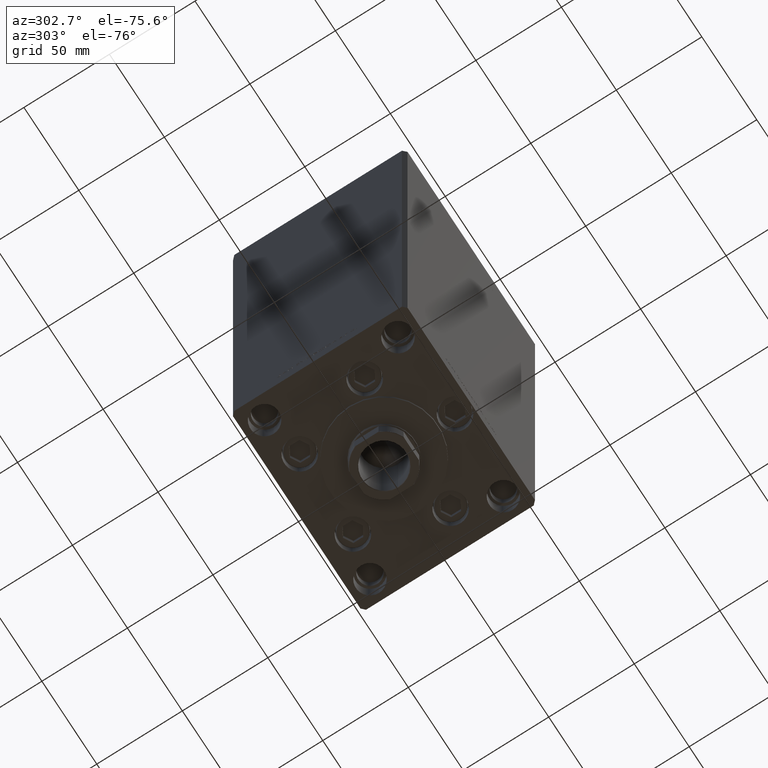
[diagram: clean part render]
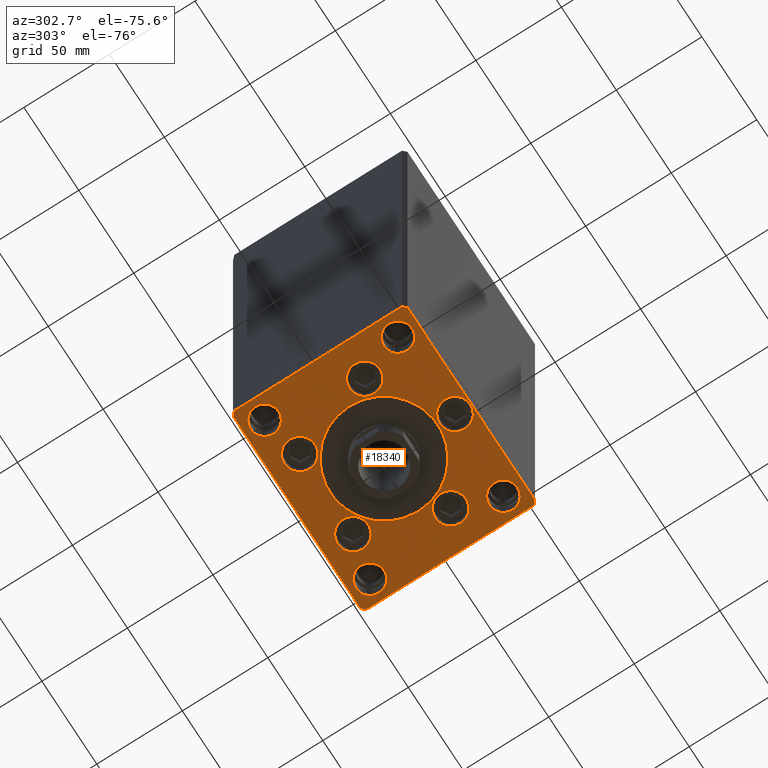
[diagram: same view with one face highlighted and labeled with its STEP entity id]
A machine part, auxiliary view. The second image highlights one B-rep face of the part: STEP entity #18340.
In plain terms, the highlighted planar face has unit normal (0, 0, -1).
Its self-contained STEP definition (entity closure, byte-faithful):
#89 = DIRECTION ( 'NONE',  ( 1.000000000000000000, 0.000000000000000000, 0.000000000000000000 ) ) ;
#268 = DIRECTION ( 'NONE',  ( 1.000000000000000000, 0.000000000000000000, 0.000000000000000000 ) ) ;
#275 = AXIS2_PLACEMENT_3D ( 'NONE', #26906, #37607, #23168 ) ;
#474 = AXIS2_PLACEMENT_3D ( 'NONE', #42025, #38297, #268 ) ;
#509 = CARTESIAN_POINT ( 'NONE',  ( 9.000000000000000000, -41.50000000000000000, 0.000000000000000000 ) ) ;
#1082 = CIRCLE ( 'NONE', #275, 9.000000000000001776 ) ;
#1696 = CIRCLE ( 'NONE', #21523, 8.249999999999992895 ) ;
#2088 = VERTEX_POINT ( 'NONE', #7954 ) ;
#2266 = CARTESIAN_POINT ( 'NONE',  ( -48.12657522565563539, -13.83333333333332682, 0.000000000000000000 ) ) ;
#2376 = CARTESIAN_POINT ( 'NONE',  ( -30.12657522565563539, -13.83333333333332860, 0.000000000000000000 ) ) ;
#2955 = VERTEX_POINT ( 'NONE', #509 ) ;
#2975 = AXIS2_PLACEMENT_3D ( 'NONE', #21291, #5647, #47155 ) ;
#3913 = CARTESIAN_POINT ( 'NONE',  ( -60.00000000000000000, -49.00000000000004263, 0.000000000000000000 ) ) ;
#4068 = CARTESIAN_POINT ( 'NONE',  ( 24.19288941894913592, 33.71874999999998579, 0.000000000000000000 ) ) ;
#4140 = CARTESIAN_POINT ( 'NONE',  ( 48.12657522565563539, -13.83333333333332860, 0.000000000000000000 ) ) ;
#4411 = ORIENTED_EDGE ( 'NONE', *, *, #14238, .F. ) ;
#4439 = DIRECTION ( 'NONE',  ( 1.000000000000000000, 0.000000000000000000, 0.000000000000000000 ) ) ;
#4652 = VERTEX_POINT ( 'NONE', #43019 ) ;
#4974 = VERTEX_POINT ( 'NONE', #19128 ) ;
#5014 = VERTEX_POINT ( 'NONE', #2376 ) ;
#5048 = EDGE_LOOP ( 'NONE', ( #17799, #25277 ) ) ;
#5285 = DIRECTION ( 'NONE',  ( -0.7071067811865536790, -0.7071067811865414665, 0.000000000000000000 ) ) ;
#5349 = CARTESIAN_POINT ( 'NONE',  ( 30.12657522565563539, -13.83333333333332682, 0.000000000000000000 ) ) ;
#5410 = FACE_OUTER_BOUND ( 'NONE', #17810, .T. ) ;
#5424 = DIRECTION ( 'NONE',  ( 1.000000000000000000, 0.000000000000000000, 0.000000000000000000 ) ) ;
#5461 = VERTEX_POINT ( 'NONE', #14735 ) ;
#5643 = CARTESIAN_POINT ( 'NONE',  ( -9.000000000000000000, -41.50000000000000000, 0.000000000000000000 ) ) ;
#5647 = DIRECTION ( 'NONE',  ( -0.000000000000000000, 0.000000000000000000, 1.000000000000000000 ) ) ;
#5865 = DIRECTION ( 'NONE',  ( 0.000000000000000000, 0.000000000000000000, 1.000000000000000000 ) ) ;
#5988 = CIRCLE ( 'NONE', #32182, 8.249999999999992895 ) ;
#6145 = CIRCLE ( 'NONE', #45856, 9.000000000000001776 ) ;
#6829 = VECTOR ( 'NONE', #16968, 1000.000000000000000 ) ;
#6873 = ORIENTED_EDGE ( 'NONE', *, *, #48017, .F. ) ;
#6910 = CARTESIAN_POINT ( 'NONE',  ( -60.00000000000000000, 49.00000000000000000, 0.000000000000000000 ) ) ;
#7066 = ORIENTED_EDGE ( 'NONE', *, *, #19293, .F. ) ;
#7298 = AXIS2_PLACEMENT_3D ( 'NONE', #36104, #20690, #20933 ) ;
#7422 = CARTESIAN_POINT ( 'NONE',  ( 39.75000000000000711, -39.00000000000001421, 0.000000000000000000 ) ) ;
#7483 = CARTESIAN_POINT ( 'NONE',  ( 60.00000000000001421, 49.00000000000002842, 0.000000000000000000 ) ) ;
#7936 = CARTESIAN_POINT ( 'NONE',  ( 31.50000000000000000, -3.081256486593065689E-15, 0.000000000000000000 ) ) ;
#7954 = CARTESIAN_POINT ( 'NONE',  ( 33.19288941894913592, 33.71874999999998579, 0.000000000000000000 ) ) ;
#8206 = ORIENTED_EDGE ( 'NONE', *, *, #18323, .T. ) ;
#8429 = DIRECTION ( 'NONE',  ( 0.7071067811865474617, -0.7071067811865474617, 0.000000000000000000 ) ) ;
#8667 = CARTESIAN_POINT ( 'NONE',  ( 60.00000000000001421, -48.99999999999992895, 0.000000000000000000 ) ) ;
#8763 = LINE ( 'NONE', #13237, #6829 ) ;
#8771 = DIRECTION ( 'NONE',  ( 1.000000000000000000, 0.000000000000000000, 0.000000000000000000 ) ) ;
#8831 = VERTEX_POINT ( 'NONE', #14972 ) ;
#9077 = AXIS2_PLACEMENT_3D ( 'NONE', #35069, #35799, #43004 ) ;
#9088 = DIRECTION ( 'NONE',  ( 1.000000000000000000, 0.000000000000000000, 0.000000000000000000 ) ) ;
#9129 = FACE_BOUND ( 'NONE', #39692, .T. ) ;
#9207 = VECTOR ( 'NONE', #28751, 1000.000000000000000 ) ;
#9297 = VERTEX_POINT ( 'NONE', #6910 ) ;
#9369 = VERTEX_POINT ( 'NONE', #3913 ) ;
#9529 = CARTESIAN_POINT ( 'NONE',  ( -48.00000000000000000, -39.00000000000001421, 0.000000000000000000 ) ) ;
#9612 = FACE_BOUND ( 'NONE', #16506, .T. ) ;
#9759 = CARTESIAN_POINT ( 'NONE',  ( 0.000000000000000000, -41.50000000000000000, 0.000000000000000000 ) ) ;
#10087 = DIRECTION ( 'NONE',  ( 1.000000000000000000, 0.000000000000000000, 0.000000000000000000 ) ) ;
#10252 = DIRECTION ( 'NONE',  ( 0.000000000000000000, 0.000000000000000000, 1.000000000000000000 ) ) ;
#10395 = ORIENTED_EDGE ( 'NONE', *, *, #46949, .F. ) ;
#10845 = VERTEX_POINT ( 'NONE', #25700 ) ;
#10873 = EDGE_LOOP ( 'NONE', ( #4411, #38768 ) ) ;
#11288 = CARTESIAN_POINT ( 'NONE',  ( -15.19288941894913592, 33.71874999999998579, 0.000000000000000000 ) ) ;
#11396 = DIRECTION ( 'NONE',  ( 0.000000000000000000, 0.000000000000000000, 1.000000000000000000 ) ) ;
#11849 = DIRECTION ( 'NONE',  ( 1.000000000000000000, 0.000000000000000000, 0.000000000000000000 ) ) ;
#12242 = CARTESIAN_POINT ( 'NONE',  ( -57.99999999999998579, 50.99999999999997868, 0.000000000000000000 ) ) ;
#12310 = VECTOR ( 'NONE', #41983, 1000.000000000000000 ) ;
#12339 = AXIS2_PLACEMENT_3D ( 'NONE', #39914, #5865, #40160 ) ;
#12745 = VERTEX_POINT ( 'NONE', #29450 ) ;
#13237 = CARTESIAN_POINT ( 'NONE',  ( -60.00000000000000000, 49.00000000000000000, 0.000000000000000000 ) ) ;
#13352 = FACE_BOUND ( 'NONE', #5048, .T. ) ;
#13653 = DIRECTION ( 'NONE',  ( -1.000000000000000000, -2.392722035830078972E-16, 0.000000000000000000 ) ) ;
#13897 = ORIENTED_EDGE ( 'NONE', *, *, #29563, .F. ) ;
#14238 = EDGE_CURVE ( 'NONE', #16536, #16217, #45697, .T. ) ;
#14461 = LINE ( 'NONE', #17455, #28948 ) ;
#14537 = LINE ( 'NONE', #44370, #29443 ) ;
#14726 = CIRCLE ( 'NONE', #12339, 9.000000000000000000 ) ;
#14735 = CARTESIAN_POINT ( 'NONE',  ( -56.24999999999999289, -39.00000000000001421, 0.000000000000000000 ) ) ;
#14880 = DIRECTION ( 'NONE',  ( 1.000000000000000000, 0.000000000000000000, 0.000000000000000000 ) ) ;
#14956 = DIRECTION ( 'NONE',  ( 0.000000000000000000, 0.000000000000000000, 1.000000000000000000 ) ) ;
#14972 = CARTESIAN_POINT ( 'NONE',  ( -57.99999999999998579, 50.99999999999997868, 0.000000000000000000 ) ) ;
#15406 = CARTESIAN_POINT ( 'NONE',  ( -60.00000000000000000, -49.00000000000004263, 0.000000000000000000 ) ) ;
#15523 = ORIENTED_EDGE ( 'NONE', *, *, #44317, .F. ) ;
#15594 = CARTESIAN_POINT ( 'NONE',  ( 48.00000000000000000, -39.00000000000001421, 0.000000000000000000 ) ) ;
#15670 = ORIENTED_EDGE ( 'NONE', *, *, #37311, .F. ) ;
#15797 = ORIENTED_EDGE ( 'NONE', *, *, #43977, .T. ) ;
#15902 = AXIS2_PLACEMENT_3D ( 'NONE', #30537, #27049, #42203 ) ;
#16143 = AXIS2_PLACEMENT_3D ( 'NONE', #42660, #24013, #27509 ) ;
#16208 = CIRCLE ( 'NONE', #39232, 9.000000000000001776 ) ;
#16217 = VERTEX_POINT ( 'NONE', #40453 ) ;
#16506 = EDGE_LOOP ( 'NONE', ( #41337, #38090 ) ) ;
#16536 = VERTEX_POINT ( 'NONE', #11288 ) ;
#16551 = ORIENTED_EDGE ( 'NONE', *, *, #40942, .F. ) ;
#16700 = VERTEX_POINT ( 'NONE', #18279 ) ;
#16844 = FACE_BOUND ( 'NONE', #36503, .T. ) ;
#16857 = VERTEX_POINT ( 'NONE', #2266 ) ;
#16968 = DIRECTION ( 'NONE',  ( 0.000000000000000000, -1.000000000000000000, 0.000000000000000000 ) ) ;
#17192 = ORIENTED_EDGE ( 'NONE', *, *, #31180, .T. ) ;
#17455 = CARTESIAN_POINT ( 'NONE',  ( 58.00000000000001421, -50.99999999999992184, 0.000000000000000000 ) ) ;
#17799 = ORIENTED_EDGE ( 'NONE', *, *, #36588, .F. ) ;
#17810 = EDGE_LOOP ( 'NONE', ( #18586, #17192, #15797, #45669, #8206, #33508, #27502, #24717 ) ) ;
#18098 = CIRCLE ( 'NONE', #20484, 8.249999999999992895 ) ;
#18108 = VERTEX_POINT ( 'NONE', #35119 ) ;
#18224 = EDGE_CURVE ( 'NONE', #4974, #46396, #31534, .T. ) ;
#18249 = ORIENTED_EDGE ( 'NONE', *, *, #36186, .F. ) ;
#18279 = CARTESIAN_POINT ( 'NONE',  ( -39.75000000000000711, -39.00000000000001421, 0.000000000000000000 ) ) ;
#18323 = EDGE_CURVE ( 'NONE', #44253, #32875, #20568, .T. ) ;
#18340 = ADVANCED_FACE ( 'NONE', ( #13352, #24540, #9612, #9129, #39456, #40188, #32000, #16844, #43181, #39696, #5410 ), #24785, .T. ) ;
#18353 = ORIENTED_EDGE ( 'NONE', *, *, #46167, .F. ) ;
#18547 = CIRCLE ( 'NONE', #43134, 9.000000000000000000 ) ;
#18586 = ORIENTED_EDGE ( 'NONE', *, *, #45778, .T. ) ;
#18999 = EDGE_LOOP ( 'NONE', ( #10395, #16551 ) ) ;
#19113 = EDGE_CURVE ( 'NONE', #9297, #9369, #8763, .T. ) ;
#19128 = CARTESIAN_POINT ( 'NONE',  ( 56.24999999999999289, 39.00000000000000000, 0.000000000000000000 ) ) ;
#19293 = EDGE_CURVE ( 'NONE', #20646, #24841, #21129, .T. ) ;
#20484 = AXIS2_PLACEMENT_3D ( 'NONE', #49013, #14956, #30117 ) ;
#20568 = LINE ( 'NONE', #28272, #9207 ) ;
#20646 = VERTEX_POINT ( 'NONE', #5349 ) ;
#20690 = DIRECTION ( 'NONE',  ( 0.000000000000000000, 0.000000000000000000, 1.000000000000000000 ) ) ;
#20933 = DIRECTION ( 'NONE',  ( 1.000000000000000000, 0.000000000000000000, 0.000000000000000000 ) ) ;
#21071 = DIRECTION ( 'NONE',  ( 0.000000000000000000, 0.000000000000000000, 1.000000000000000000 ) ) ;
#21129 = CIRCLE ( 'NONE', #474, 9.000000000000001776 ) ;
#21230 = VERTEX_POINT ( 'NONE', #27603 ) ;
#21274 = CARTESIAN_POINT ( 'NONE',  ( -39.12657522565563539, -13.83333333333332860, 0.000000000000000000 ) ) ;
#21291 = CARTESIAN_POINT ( 'NONE',  ( 0.000000000000000000, 0.000000000000000000, 0.000000000000000000 ) ) ;
#21438 = DIRECTION ( 'NONE',  ( 1.000000000000000000, 0.000000000000000000, 0.000000000000000000 ) ) ;
#21523 = AXIS2_PLACEMENT_3D ( 'NONE', #42883, #35682, #46860 ) ;
#22579 = CARTESIAN_POINT ( 'NONE',  ( 48.00000000000000000, 39.00000000000000000, 0.000000000000000000 ) ) ;
#22829 = EDGE_CURVE ( 'NONE', #2088, #45032, #6145, .T. ) ;
#22895 = DIRECTION ( 'NONE',  ( 1.000000000000000000, 0.000000000000000000, 0.000000000000000000 ) ) ;
#23168 = DIRECTION ( 'NONE',  ( 1.000000000000000000, 0.000000000000000000, 0.000000000000000000 ) ) ;
#23220 = EDGE_CURVE ( 'NONE', #10845, #4652, #18098, .T. ) ;
#23633 = CIRCLE ( 'NONE', #47444, 8.249999999999992895 ) ;
#23667 = EDGE_CURVE ( 'NONE', #44603, #12745, #23633, .T. ) ;
#23686 = DIRECTION ( 'NONE',  ( 0.000000000000000000, 0.000000000000000000, 1.000000000000000000 ) ) ;
#24000 = EDGE_CURVE ( 'NONE', #16217, #16536, #44294, .T. ) ;
#24013 = DIRECTION ( 'NONE',  ( 0.000000000000000000, 0.000000000000000000, 1.000000000000000000 ) ) ;
#24294 = AXIS2_PLACEMENT_3D ( 'NONE', #22579, #48935, #14880 ) ;
#24512 = EDGE_LOOP ( 'NONE', ( #18353, #40474 ) ) ;
#24540 = FACE_BOUND ( 'NONE', #10873, .T. ) ;
#24658 = VECTOR ( 'NONE', #13653, 1000.000000000000000 ) ;
#24717 = ORIENTED_EDGE ( 'NONE', *, *, #19113, .T. ) ;
#24785 = PLANE ( 'NONE',  #2975 ) ;
#24841 = VERTEX_POINT ( 'NONE', #4140 ) ;
#25277 = ORIENTED_EDGE ( 'NONE', *, *, #44160, .F. ) ;
#25700 = CARTESIAN_POINT ( 'NONE',  ( -56.24999999999999289, 39.00000000000000711, 0.000000000000000000 ) ) ;
#25748 = CARTESIAN_POINT ( 'NONE',  ( 58.00000000000000000, 51.00000000000000711, 0.000000000000000000 ) ) ;
#26640 = VERTEX_POINT ( 'NONE', #33701 ) ;
#26692 = AXIS2_PLACEMENT_3D ( 'NONE', #9529, #47805, #32409 ) ;
#26872 = CARTESIAN_POINT ( 'NONE',  ( 0.000000000000000000, -6.938893903907228378E-15, 0.000000000000000000 ) ) ;
#26906 = CARTESIAN_POINT ( 'NONE',  ( 24.19288941894913592, 33.71874999999998579, 0.000000000000000000 ) ) ;
#27049 = DIRECTION ( 'NONE',  ( 0.000000000000000000, 0.000000000000000000, 1.000000000000000000 ) ) ;
#27360 = CIRCLE ( 'NONE', #33710, 31.50000000000000000 ) ;
#27502 = ORIENTED_EDGE ( 'NONE', *, *, #48877, .T. ) ;
#27509 = DIRECTION ( 'NONE',  ( 1.000000000000000000, 0.000000000000000000, 0.000000000000000000 ) ) ;
#27603 = CARTESIAN_POINT ( 'NONE',  ( -58.00000000000000711, -51.00000000000002842, 0.000000000000000000 ) ) ;
#28272 = CARTESIAN_POINT ( 'NONE',  ( 60.00000000000001421, 49.00000000000002842, 0.000000000000000000 ) ) ;
#28562 = VERTEX_POINT ( 'NONE', #5643 ) ;
#28751 = DIRECTION ( 'NONE',  ( -0.7071067811865536790, 0.7071067811865414665, 0.000000000000000000 ) ) ;
#28948 = VECTOR ( 'NONE', #36106, 1000.000000000000114 ) ;
#29019 = CARTESIAN_POINT ( 'NONE',  ( 48.00000000000000000, -39.00000000000001421, 0.000000000000000000 ) ) ;
#29443 = VECTOR ( 'NONE', #29697, 1000.000000000000000 ) ;
#29450 = CARTESIAN_POINT ( 'NONE',  ( 56.24999999999999289, -39.00000000000001421, 0.000000000000000000 ) ) ;
#29513 = CARTESIAN_POINT ( 'NONE',  ( 15.19288941894913236, 33.71874999999998579, 0.000000000000000000 ) ) ;
#29563 = EDGE_CURVE ( 'NONE', #24841, #20646, #37331, .T. ) ;
#29697 = DIRECTION ( 'NONE',  ( 1.000000000000000000, 9.570888143320313916E-16, 0.000000000000000000 ) ) ;
#30117 = DIRECTION ( 'NONE',  ( 1.000000000000000000, 0.000000000000000000, 0.000000000000000000 ) ) ;
#30154 = ORIENTED_EDGE ( 'NONE', *, *, #23667, .F. ) ;
#30502 = DIRECTION ( 'NONE',  ( 0.000000000000000000, 0.000000000000000000, 1.000000000000000000 ) ) ;
#30537 = CARTESIAN_POINT ( 'NONE',  ( 39.12657522565563539, -13.83333333333332860, 0.000000000000000000 ) ) ;
#30612 = AXIS2_PLACEMENT_3D ( 'NONE', #38494, #11396, #4439 ) ;
#31180 = EDGE_CURVE ( 'NONE', #21230, #40351, #14537, .T. ) ;
#31534 = CIRCLE ( 'NONE', #24294, 8.249999999999992895 ) ;
#31893 = AXIS2_PLACEMENT_3D ( 'NONE', #34652, #23686, #8771 ) ;
#31907 = CARTESIAN_POINT ( 'NONE',  ( 39.75000000000000711, 39.00000000000000000, 0.000000000000000000 ) ) ;
#31987 = EDGE_LOOP ( 'NONE', ( #18249, #6873 ) ) ;
#32000 = FACE_BOUND ( 'NONE', #40243, .T. ) ;
#32182 = AXIS2_PLACEMENT_3D ( 'NONE', #15594, #30502, #11849 ) ;
#32409 = DIRECTION ( 'NONE',  ( 1.000000000000000000, 0.000000000000000000, 0.000000000000000000 ) ) ;
#32548 = LINE ( 'NONE', #47700, #24658 ) ;
#32875 = VERTEX_POINT ( 'NONE', #25748 ) ;
#33508 = ORIENTED_EDGE ( 'NONE', *, *, #33664, .T. ) ;
#33648 = EDGE_LOOP ( 'NONE', ( #37394, #30154 ) ) ;
#33664 = EDGE_CURVE ( 'NONE', #32875, #8831, #32548, .T. ) ;
#33701 = CARTESIAN_POINT ( 'NONE',  ( 60.00000000000001421, -48.99999999999992895, 0.000000000000000000 ) ) ;
#33710 = AXIS2_PLACEMENT_3D ( 'NONE', #26872, #41534, #22895 ) ;
#34652 = CARTESIAN_POINT ( 'NONE',  ( 48.00000000000000000, 39.00000000000000000, 0.000000000000000000 ) ) ;
#34787 = LINE ( 'NONE', #8667, #12310 ) ;
#35069 = CARTESIAN_POINT ( 'NONE',  ( -48.00000000000000000, 39.00000000000000711, 0.000000000000000000 ) ) ;
#35119 = CARTESIAN_POINT ( 'NONE',  ( -31.50000000000000000, -6.938893903907228378E-15, 0.000000000000000000 ) ) ;
#35682 = DIRECTION ( 'NONE',  ( 0.000000000000000000, 0.000000000000000000, 1.000000000000000000 ) ) ;
#35799 = DIRECTION ( 'NONE',  ( 0.000000000000000000, 0.000000000000000000, 1.000000000000000000 ) ) ;
#36104 = CARTESIAN_POINT ( 'NONE',  ( 0.000000000000000000, -6.938893903907228378E-15, 0.000000000000000000 ) ) ;
#36106 = DIRECTION ( 'NONE',  ( 0.7071067811865474617, 0.7071067811865474617, 0.000000000000000000 ) ) ;
#36186 = EDGE_CURVE ( 'NONE', #16700, #5461, #1696, .T. ) ;
#36347 = AXIS2_PLACEMENT_3D ( 'NONE', #44120, #40383, #9088 ) ;
#36445 = DIRECTION ( 'NONE',  ( 0.000000000000000000, 0.000000000000000000, 1.000000000000000000 ) ) ;
#36503 = EDGE_LOOP ( 'NONE', ( #15523, #37735 ) ) ;
#36588 = EDGE_CURVE ( 'NONE', #18108, #47402, #36652, .T. ) ;
#36652 = CIRCLE ( 'NONE', #7298, 31.50000000000000000 ) ;
#36757 = CIRCLE ( 'NONE', #16143, 9.000000000000001776 ) ;
#37311 = EDGE_CURVE ( 'NONE', #46396, #4974, #37463, .T. ) ;
#37331 = CIRCLE ( 'NONE', #15902, 9.000000000000001776 ) ;
#37383 = DIRECTION ( 'NONE',  ( 0.000000000000000000, 0.000000000000000000, 1.000000000000000000 ) ) ;
#37394 = ORIENTED_EDGE ( 'NONE', *, *, #46012, .F. ) ;
#37463 = CIRCLE ( 'NONE', #31893, 8.249999999999992895 ) ;
#37607 = DIRECTION ( 'NONE',  ( 0.000000000000000000, 0.000000000000000000, 1.000000000000000000 ) ) ;
#37680 = CIRCLE ( 'NONE', #9077, 8.249999999999992895 ) ;
#37735 = ORIENTED_EDGE ( 'NONE', *, *, #23220, .F. ) ;
#38090 = ORIENTED_EDGE ( 'NONE', *, *, #42021, .F. ) ;
#38297 = DIRECTION ( 'NONE',  ( 0.000000000000000000, 0.000000000000000000, 1.000000000000000000 ) ) ;
#38494 = CARTESIAN_POINT ( 'NONE',  ( -24.19288941894913592, 33.71874999999998579, 0.000000000000000000 ) ) ;
#38768 = ORIENTED_EDGE ( 'NONE', *, *, #24000, .F. ) ;
#39000 = LINE ( 'NONE', #15406, #40121 ) ;
#39232 = AXIS2_PLACEMENT_3D ( 'NONE', #21274, #36445, #10087 ) ;
#39456 = FACE_BOUND ( 'NONE', #24512, .T. ) ;
#39692 = EDGE_LOOP ( 'NONE', ( #13897, #7066 ) ) ;
#39696 = FACE_BOUND ( 'NONE', #33648, .T. ) ;
#39914 = CARTESIAN_POINT ( 'NONE',  ( 0.000000000000000000, -41.50000000000000000, 0.000000000000000000 ) ) ;
#40121 = VECTOR ( 'NONE', #8429, 1000.000000000000114 ) ;
#40160 = DIRECTION ( 'NONE',  ( 1.000000000000000000, 0.000000000000000000, 0.000000000000000000 ) ) ;
#40188 = FACE_BOUND ( 'NONE', #18999, .T. ) ;
#40243 = EDGE_LOOP ( 'NONE', ( #45925, #15670 ) ) ;
#40351 = VERTEX_POINT ( 'NONE', #46571 ) ;
#40383 = DIRECTION ( 'NONE',  ( 0.000000000000000000, 0.000000000000000000, 1.000000000000000000 ) ) ;
#40453 = CARTESIAN_POINT ( 'NONE',  ( -33.19288941894913592, 33.71874999999998579, 0.000000000000000000 ) ) ;
#40474 = ORIENTED_EDGE ( 'NONE', *, *, #41373, .F. ) ;
#40942 = EDGE_CURVE ( 'NONE', #16857, #5014, #36757, .T. ) ;
#41337 = ORIENTED_EDGE ( 'NONE', *, *, #22829, .F. ) ;
#41373 = EDGE_CURVE ( 'NONE', #28562, #2955, #18547, .T. ) ;
#41534 = DIRECTION ( 'NONE',  ( 0.000000000000000000, 0.000000000000000000, 1.000000000000000000 ) ) ;
#41983 = DIRECTION ( 'NONE',  ( 0.000000000000000000, 1.000000000000000000, 0.000000000000000000 ) ) ;
#42021 = EDGE_CURVE ( 'NONE', #45032, #2088, #1082, .T. ) ;
#42025 = CARTESIAN_POINT ( 'NONE',  ( 39.12657522565563539, -13.83333333333332860, 0.000000000000000000 ) ) ;
#42203 = DIRECTION ( 'NONE',  ( 1.000000000000000000, 0.000000000000000000, 0.000000000000000000 ) ) ;
#42660 = CARTESIAN_POINT ( 'NONE',  ( -39.12657522565563539, -13.83333333333332860, 0.000000000000000000 ) ) ;
#42883 = CARTESIAN_POINT ( 'NONE',  ( -48.00000000000000000, -39.00000000000001421, 0.000000000000000000 ) ) ;
#43004 = DIRECTION ( 'NONE',  ( 1.000000000000000000, 0.000000000000000000, 0.000000000000000000 ) ) ;
#43019 = CARTESIAN_POINT ( 'NONE',  ( -39.75000000000000711, 39.00000000000000711, 0.000000000000000000 ) ) ;
#43134 = AXIS2_PLACEMENT_3D ( 'NONE', #9759, #10252, #21438 ) ;
#43181 = FACE_BOUND ( 'NONE', #31987, .T. ) ;
#43977 = EDGE_CURVE ( 'NONE', #40351, #26640, #14461, .T. ) ;
#44120 = CARTESIAN_POINT ( 'NONE',  ( -24.19288941894913592, 33.71874999999998579, 0.000000000000000000 ) ) ;
#44160 = EDGE_CURVE ( 'NONE', #47402, #18108, #27360, .T. ) ;
#44253 = VERTEX_POINT ( 'NONE', #7483 ) ;
#44294 = CIRCLE ( 'NONE', #36347, 9.000000000000000000 ) ;
#44317 = EDGE_CURVE ( 'NONE', #4652, #10845, #37680, .T. ) ;
#44370 = CARTESIAN_POINT ( 'NONE',  ( -58.00000000000000711, -51.00000000000002842, 0.000000000000000000 ) ) ;
#44603 = VERTEX_POINT ( 'NONE', #7422 ) ;
#44783 = EDGE_CURVE ( 'NONE', #26640, #44253, #34787, .T. ) ;
#45032 = VERTEX_POINT ( 'NONE', #29513 ) ;
#45669 = ORIENTED_EDGE ( 'NONE', *, *, #44783, .T. ) ;
#45697 = CIRCLE ( 'NONE', #30612, 9.000000000000000000 ) ;
#45778 = EDGE_CURVE ( 'NONE', #9369, #21230, #39000, .T. ) ;
#45856 = AXIS2_PLACEMENT_3D ( 'NONE', #4068, #37383, #89 ) ;
#45925 = ORIENTED_EDGE ( 'NONE', *, *, #18224, .F. ) ;
#46012 = EDGE_CURVE ( 'NONE', #12745, #44603, #5988, .T. ) ;
#46167 = EDGE_CURVE ( 'NONE', #2955, #28562, #14726, .T. ) ;
#46396 = VERTEX_POINT ( 'NONE', #31907 ) ;
#46518 = VECTOR ( 'NONE', #5285, 1000.000000000000000 ) ;
#46571 = CARTESIAN_POINT ( 'NONE',  ( 58.00000000000001421, -50.99999999999992184, 0.000000000000000000 ) ) ;
#46780 = LINE ( 'NONE', #12242, #46518 ) ;
#46860 = DIRECTION ( 'NONE',  ( 1.000000000000000000, 0.000000000000000000, 0.000000000000000000 ) ) ;
#46949 = EDGE_CURVE ( 'NONE', #5014, #16857, #16208, .T. ) ;
#47155 = DIRECTION ( 'NONE',  ( 1.000000000000000000, 0.000000000000000000, 0.000000000000000000 ) ) ;
#47304 = CIRCLE ( 'NONE', #26692, 8.249999999999992895 ) ;
#47402 = VERTEX_POINT ( 'NONE', #7936 ) ;
#47444 = AXIS2_PLACEMENT_3D ( 'NONE', #29019, #21071, #5424 ) ;
#47700 = CARTESIAN_POINT ( 'NONE',  ( 58.00000000000000000, 51.00000000000000711, 0.000000000000000000 ) ) ;
#47805 = DIRECTION ( 'NONE',  ( 0.000000000000000000, 0.000000000000000000, 1.000000000000000000 ) ) ;
#48017 = EDGE_CURVE ( 'NONE', #5461, #16700, #47304, .T. ) ;
#48877 = EDGE_CURVE ( 'NONE', #8831, #9297, #46780, .T. ) ;
#48935 = DIRECTION ( 'NONE',  ( 0.000000000000000000, 0.000000000000000000, 1.000000000000000000 ) ) ;
#49013 = CARTESIAN_POINT ( 'NONE',  ( -48.00000000000000000, 39.00000000000000711, 0.000000000000000000 ) ) ;